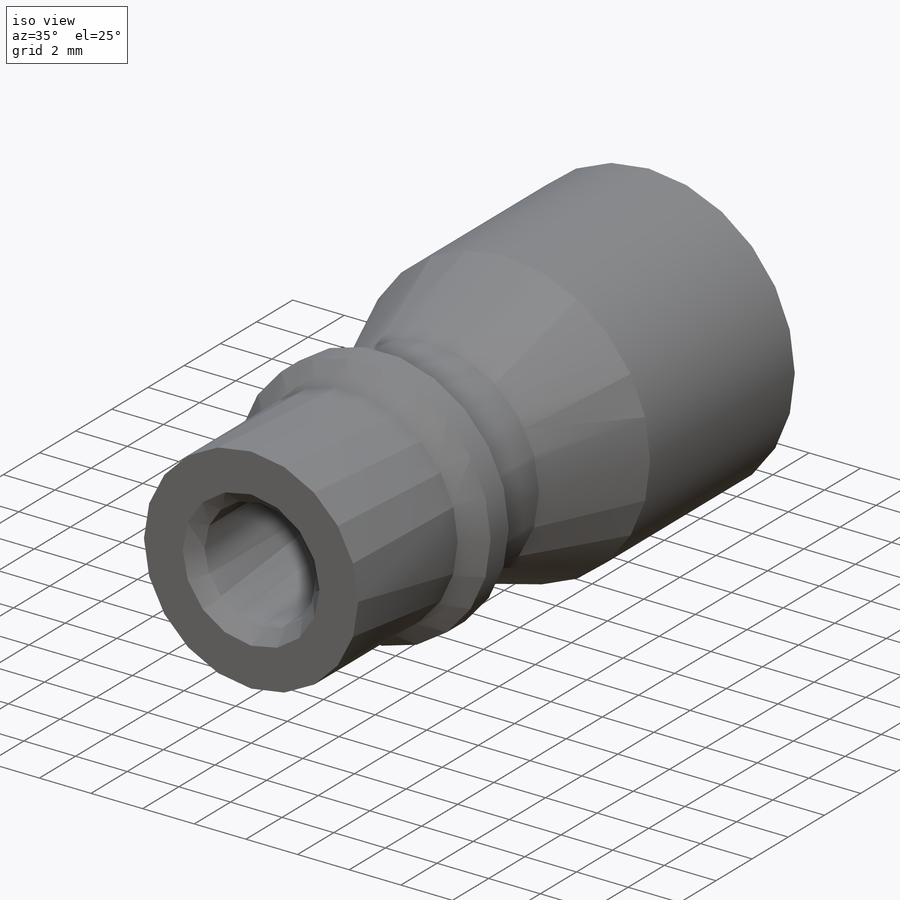
[diagram: iso view]
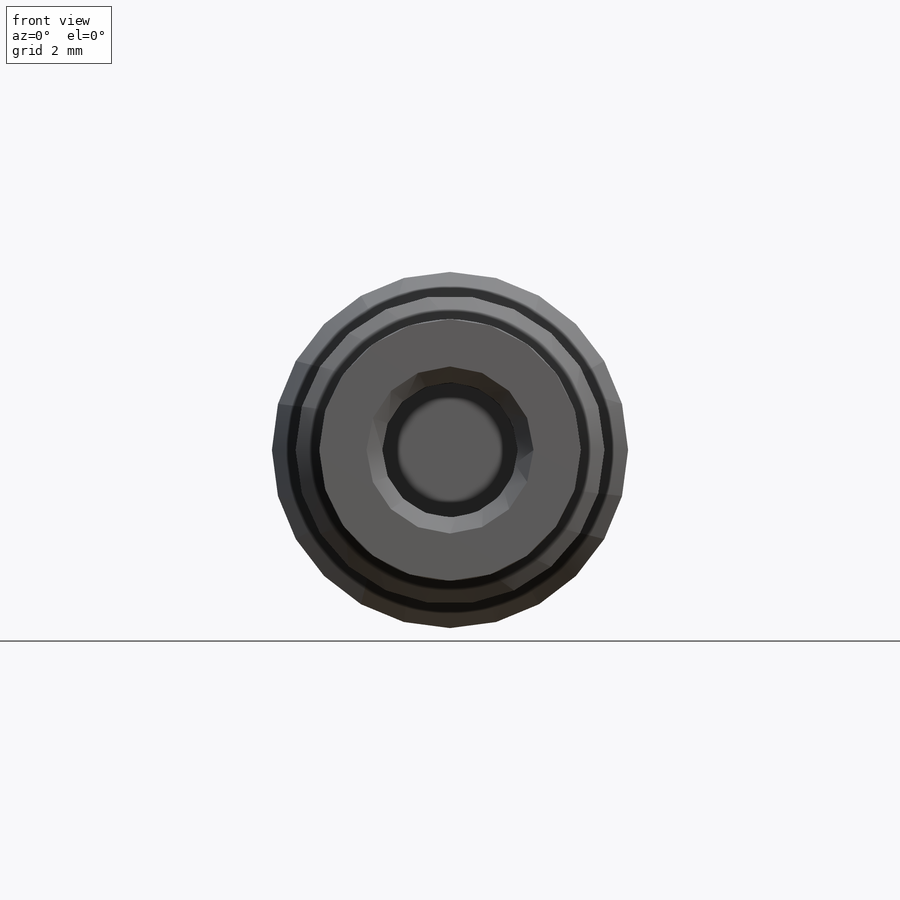
[diagram: front view]
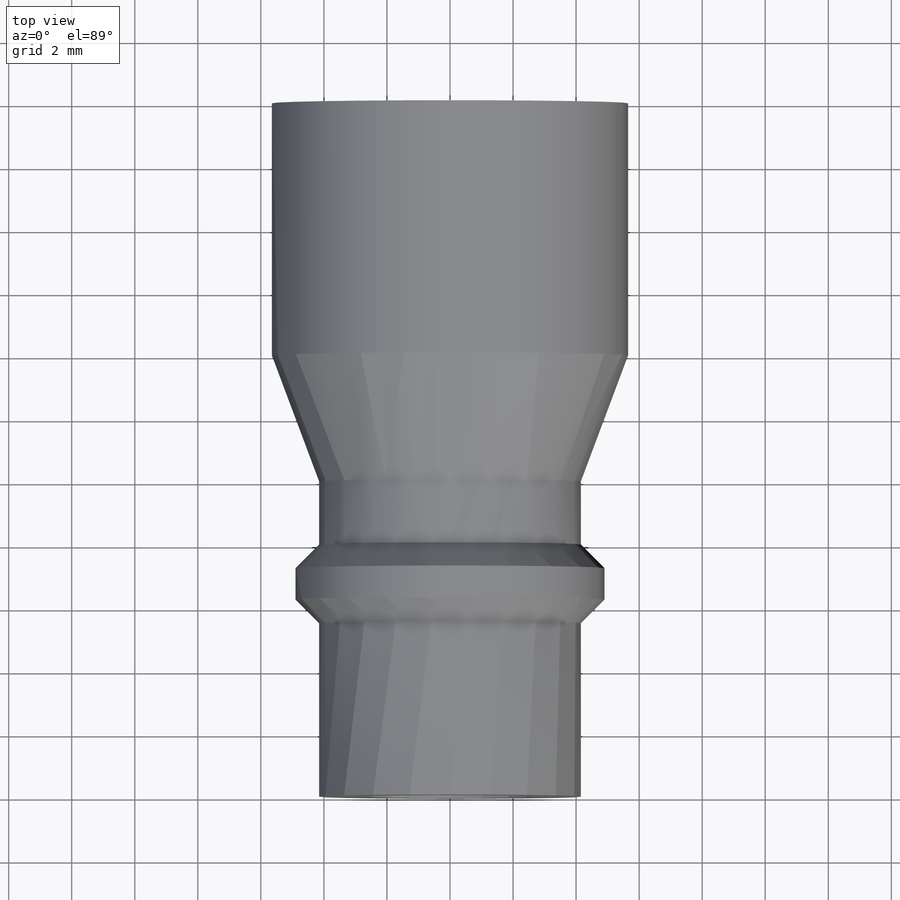
[diagram: top view]
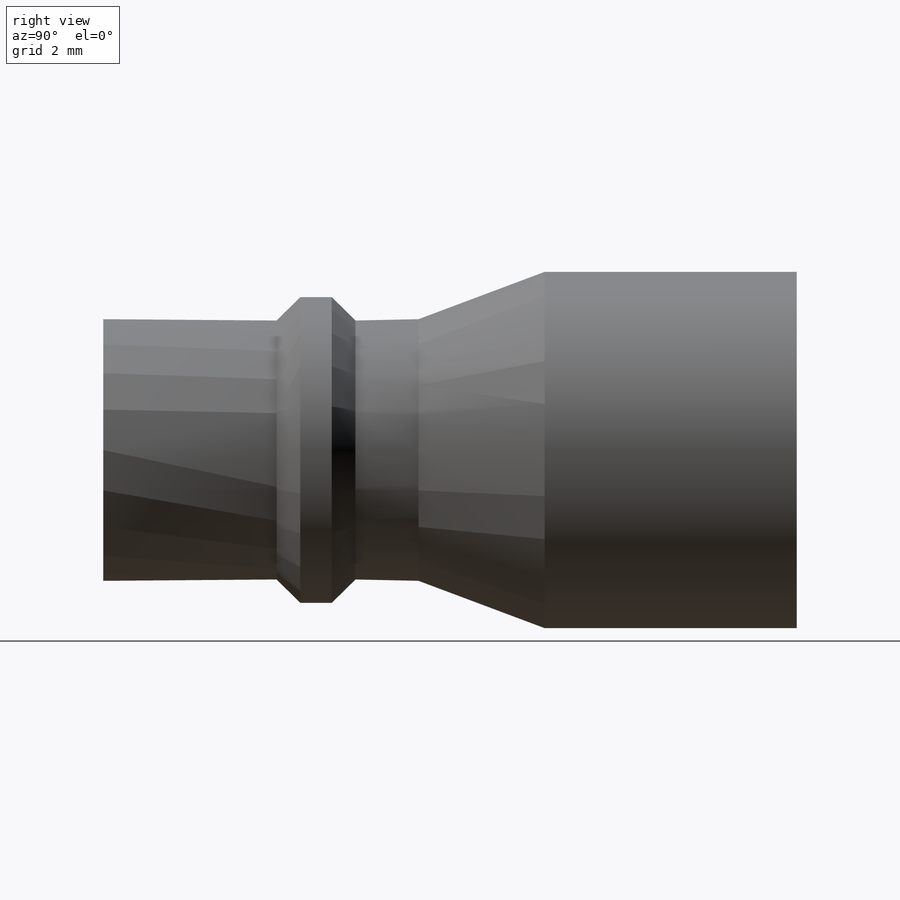
[diagram: right view]
SOLIDWORKS PART (.sldprt)
format: sldprt  version: not decoded by parser v0  size: 182,784 bytes
history: native  units: mm
features: sketch x6, extrude x2, chamfer x2, material x1, plane x1, cut_extrude x1, revolve x1 (+11 scaffold rows collapsed)
feature tree (25):
  scaffold x11  (default folders/planes/origin — collapsed)
  material  "Material <not specified>"
  sketch  "Sketch1"  dims[D1=7.3mm D2=2.0mm]
  extrude  "Boss-Extrude1"  Depth=8mm
  plane  "Plane1"  Offset=4mm
  sketch  "Sketch3"
  sketch  "Sketch2"  dims[c1.D1=3.2mm c1.D2=3.2mm c2.D1=8.3mm c2.D2=2.0mm]
  sketch  "Sketch4"
  cut_extrude  "Cut-Extrude2"  Depth=3mm
  sketch  "Sketch6"  dims[D1=4.3mm]
  extrude  "Boss-Extrude2"  Depth=10mm
  sketch  "Sketch7"  dims[c1.D1=0.75mm c1.D2=~1.06066mm c2.D2=45.0deg c3.D2=1.0mm c3.D3=2.0mm]
  revolve  "Revolve1"  Angle=360deg
  chamfer  "Chamfer1"  Distance=0.5mm Angle=45deg
  chamfer  "Chamfer2"  Distance=0.5mm Angle=45deg
decode coverage: 10 of 12 modeling features carry decoded parameters
note: ~ marks probable driven/reference dimensions
note: suppression state not decoded; provenance and decode notes live in map.json
